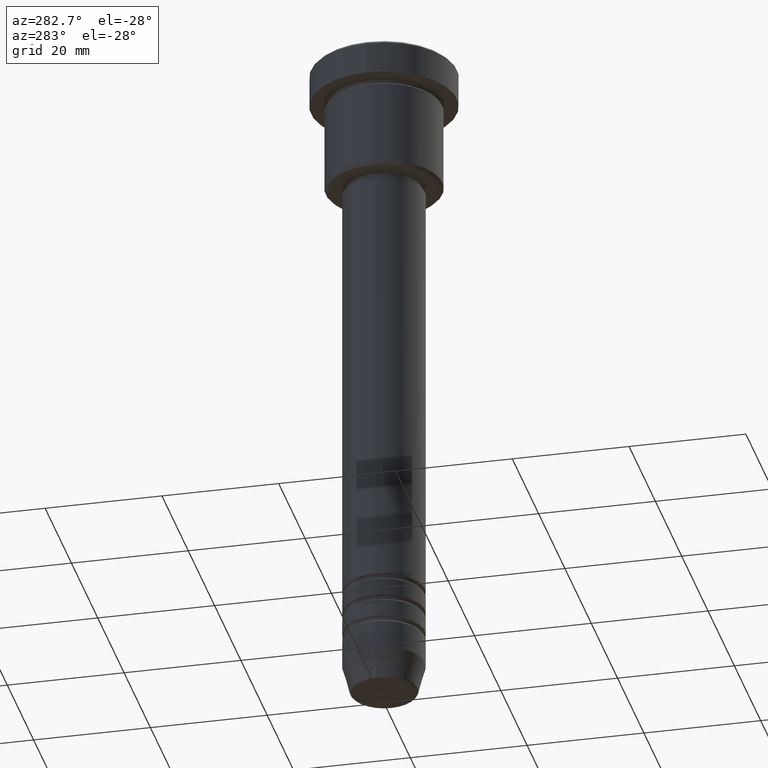
[diagram: clean part render]
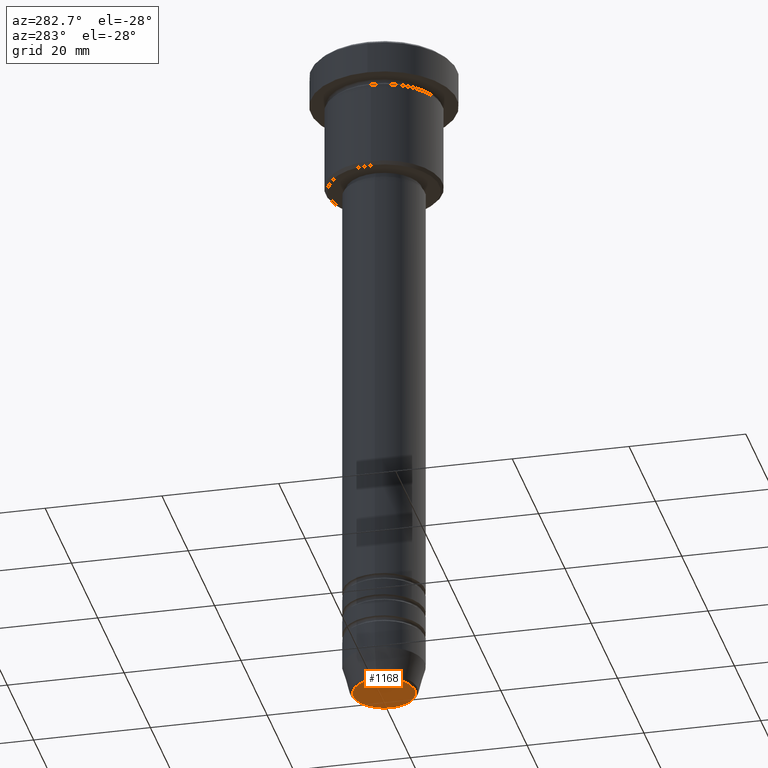
[diagram: same view with one face highlighted and labeled with its STEP entity id]
A machine part, auxiliary view. The second image highlights one B-rep face of the part: STEP entity #1168.
In plain terms, the highlighted planar face has unit normal (0, -0, 1).
Its self-contained STEP definition (entity closure, byte-faithful):
#39 = DIRECTION ( 'NONE',  ( 0.000000000000000000, -0.000000000000000000, 1.000000000000000000 ) ) ;
#66 = EDGE_LOOP ( 'NONE', ( #996, #311 ) ) ;
#126 = CARTESIAN_POINT ( 'NONE',  ( 0.000000000000000000, 0.000000000000000000, -117.0000000000000000 ) ) ;
#181 = CARTESIAN_POINT ( 'NONE',  ( -5.276590543854905668, 6.757689212787771832E-16, -117.0000000000000000 ) ) ;
#251 = FACE_OUTER_BOUND ( 'NONE', #66, .T. ) ;
#256 = VERTEX_POINT ( 'NONE', #507 ) ;
#311 = ORIENTED_EDGE ( 'NONE', *, *, #421, .T. ) ;
#365 = DIRECTION ( 'NONE',  ( 0.000000000000000000, 0.000000000000000000, -1.000000000000000000 ) ) ;
#418 = AXIS2_PLACEMENT_3D ( 'NONE', #775, #686, #1152 ) ;
#421 = EDGE_CURVE ( 'NONE', #471, #256, #906, .T. ) ;
#445 = DIRECTION ( 'NONE',  ( 1.000000000000000000, 0.000000000000000000, 0.000000000000000000 ) ) ;
#471 = VERTEX_POINT ( 'NONE', #181 ) ;
#507 = CARTESIAN_POINT ( 'NONE',  ( 5.276590543854905668, 0.000000000000000000, -117.0000000000000000 ) ) ;
#631 = CARTESIAN_POINT ( 'NONE',  ( 0.000000000000000000, 0.000000000000000000, -117.0000000000000000 ) ) ;
#686 = DIRECTION ( 'NONE',  ( 0.000000000000000000, 0.000000000000000000, -1.000000000000000000 ) ) ;
#761 = PLANE ( 'NONE',  #1122 ) ;
#775 = CARTESIAN_POINT ( 'NONE',  ( 0.000000000000000000, 0.000000000000000000, -117.0000000000000000 ) ) ;
#826 = CIRCLE ( 'NONE', #418, 5.276590543854905668 ) ;
#871 = AXIS2_PLACEMENT_3D ( 'NONE', #631, #365, #1166 ) ;
#906 = CIRCLE ( 'NONE', #871, 5.276590543854905668 ) ;
#996 = ORIENTED_EDGE ( 'NONE', *, *, #1068, .T. ) ;
#1068 = EDGE_CURVE ( 'NONE', #256, #471, #826, .T. ) ;
#1122 = AXIS2_PLACEMENT_3D ( 'NONE', #126, #39, #445 ) ;
#1152 = DIRECTION ( 'NONE',  ( 1.000000000000000000, 0.000000000000000000, 0.000000000000000000 ) ) ;
#1166 = DIRECTION ( 'NONE',  ( 1.000000000000000000, 0.000000000000000000, 0.000000000000000000 ) ) ;
#1168 = ADVANCED_FACE ( 'NONE', ( #251 ), #761, .F. ) ;